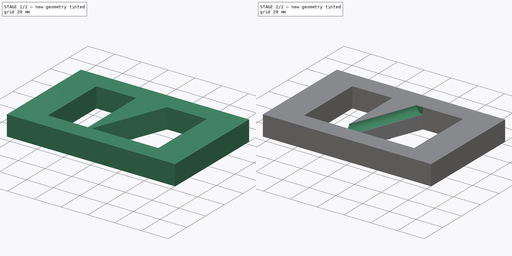
[diagram: build sequence overview — one tinted view per stage of 2, left to right]
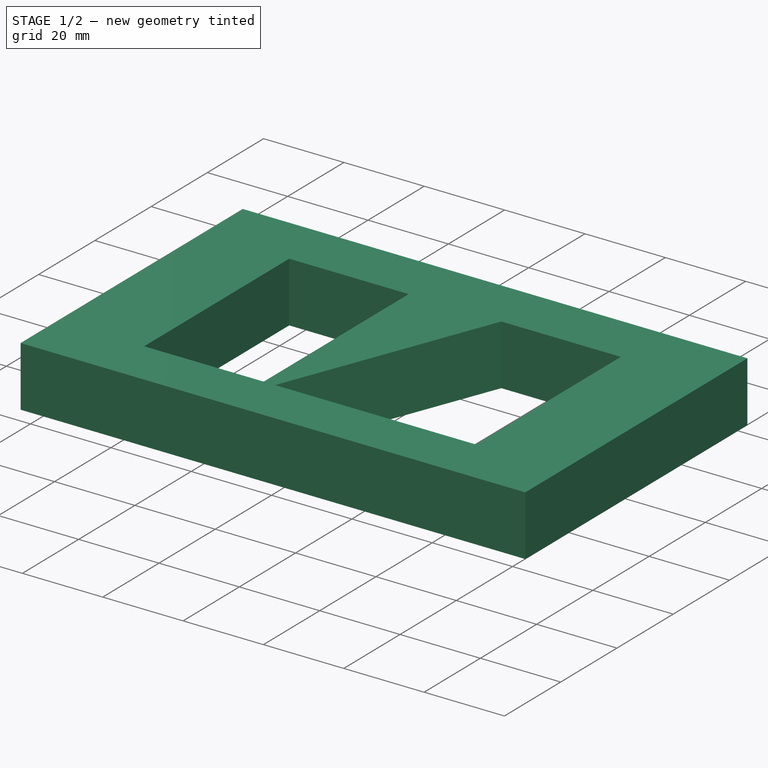
[diagram: stage 1 of 2 — iso view after this stage's code; geometry added in this stage tinted green]
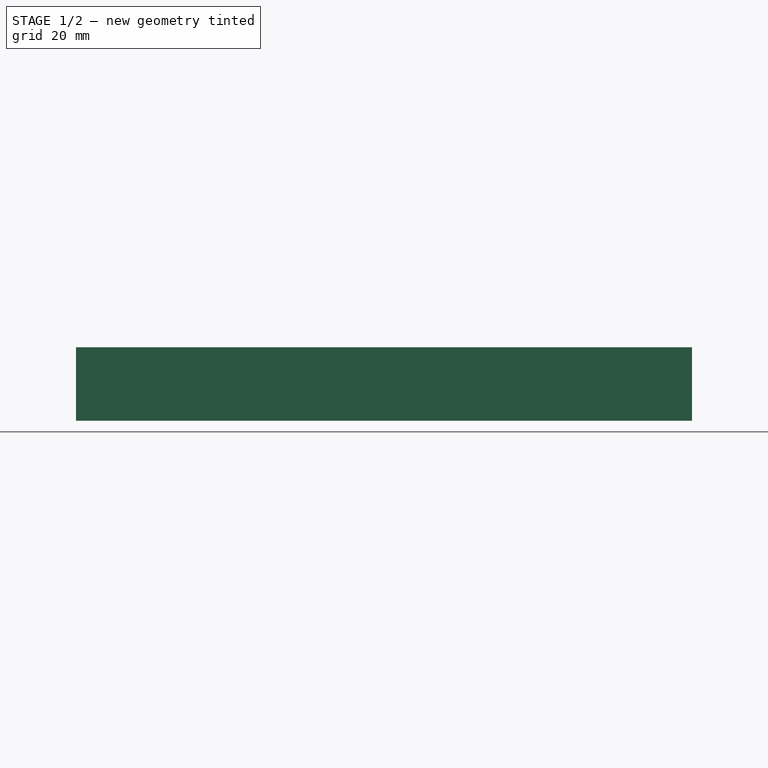
[diagram: stage 1 of 2 — front view after this stage's code; geometry added in this stage tinted green]
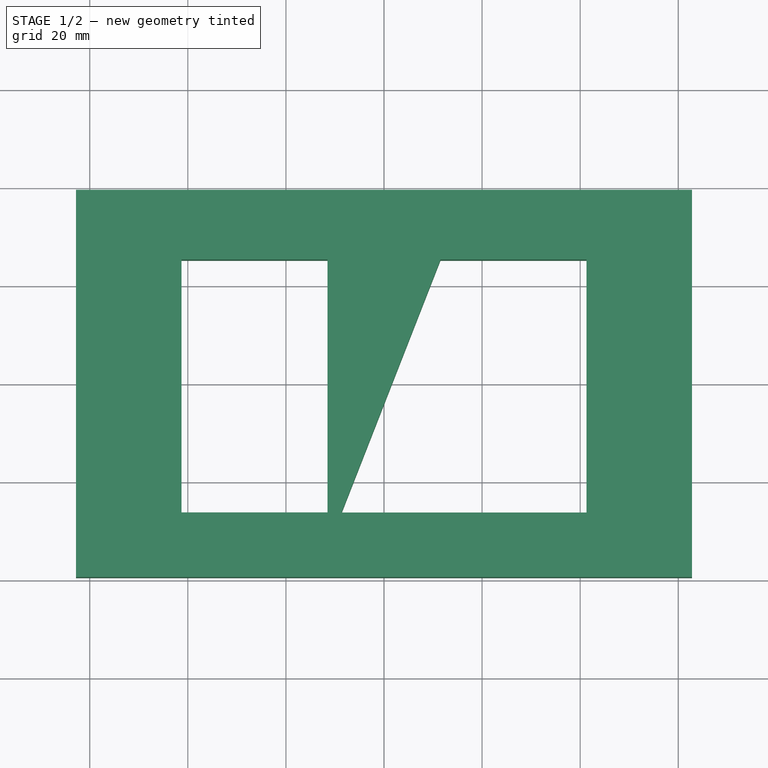
[diagram: stage 1 of 2 — top view after this stage's code; geometry added in this stage tinted green]
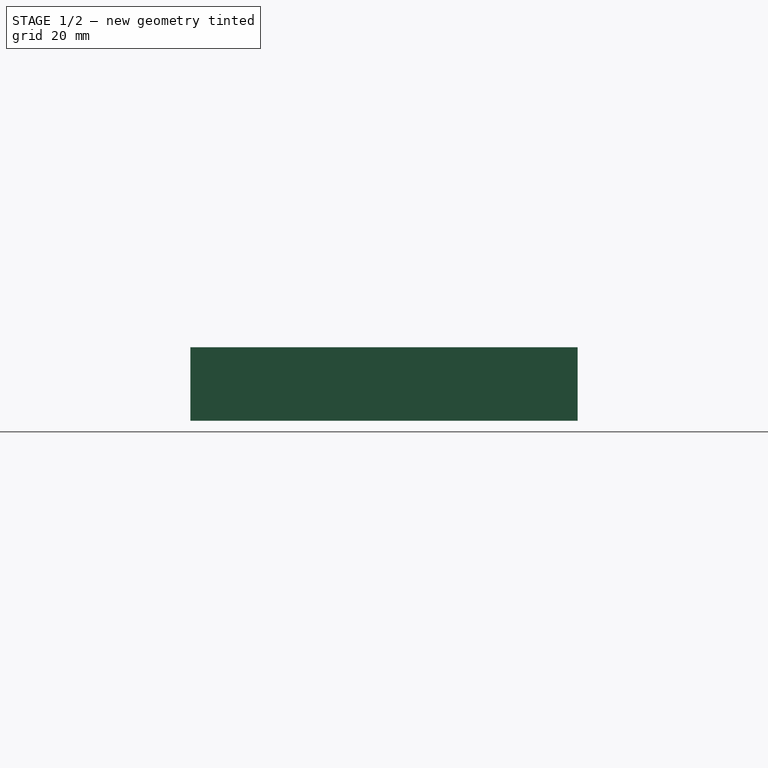
[diagram: stage 1 of 2 — right view after this stage's code; geometry added in this stage tinted green]
FCSTD DOCUMENT  (FreeCAD 0.20R29177 +426 (Git))
Label: project_12
License: All rights reserved
LicenseURL: https://en.wikipedia.org/wiki/All_rights_reserved
objects: Sketcher::SketchObject×2, PartDesign::Pad×1, PartDesign::Pocket×1, PartDesign::Body×1
note: 7 computed .brp shape members not serialized (recipe doc carries the construction recipe); baked Part::Feature solids carry a one-line shape summary decoded from their .brp

FEATURE [Sketcher::SketchObject] Sketch
  FullyConstrained = false
  MapMode = 5
  Support = -> [XY_Plane]
  sketch-geometry (12):
    g0: LineSegment StartX=-62.8142 StartY=39.4873 StartZ=0 EndX=62.8142 EndY=39.4873 EndZ=0
    g1: LineSegment StartX=62.8142 StartY=39.4873 StartZ=0 EndX=62.8142 EndY=-39.4873 EndZ=0
    g2: LineSegment StartX=62.8142 StartY=-39.4873 StartZ=0 EndX=-62.8142 EndY=-39.4873 EndZ=0
    g3: LineSegment StartX=-62.8142 StartY=-39.4873 StartZ=0 EndX=-62.8142 EndY=39.4873 EndZ=0
    g4: LineSegment StartX=-41.2808 StartY=25.2478 StartZ=0 EndX=-11.5219 EndY=25.2478 EndZ=0
    g5: LineSegment StartX=-11.5219 StartY=25.2478 StartZ=0 EndX=-11.5219 EndY=-26.3113 EndZ=0
    g6: LineSegment StartX=-11.5219 StartY=-26.3113 StartZ=0 EndX=-41.2808 EndY=-26.3113 EndZ=0
    g7: LineSegment StartX=-41.2808 StartY=-26.3113 StartZ=0 EndX=-41.2808 EndY=25.2478 EndZ=0
    g8: LineSegment StartX=41.2808 StartY=25.2478 StartZ=0 EndX=11.5219 EndY=25.2478 EndZ=0
    g9: LineSegment StartX=11.5219 StartY=25.2478 StartZ=0 EndX=-8.66174 EndY=-26.338 EndZ=0
    g10: LineSegment StartX=-8.66174 StartY=-26.338 StartZ=0 EndX=41.2808 EndY=-26.338 EndZ=0
    g11: LineSegment StartX=41.2808 StartY=-26.338 StartZ=0 EndX=41.2808 EndY=25.2478 EndZ=0
  constraints (23):
    c: Coincident(g0,g1)
    c: Coincident(g1,g2)
    c: Coincident(g2,g3)
    c: Coincident(g3,g0)
    c: Horizontal(g2)
    c: Vertical(g3)
    c: Symmetric(g0,g0,g-2)
    c: Symmetric(g1,g0,g-1)
    c: Coincident(g4,g5)
    c: Coincident(g5,g6)
    c: Coincident(g6,g7)
    c: Coincident(g7,g4)
    c: Horizontal(g4)
    c: Horizontal(g6)
    c: Vertical(g5)
    c: Vertical(g7)
    c: Coincident(g8,g9)
    c: Coincident(g9,g10)
    c: Coincident(g10,g11)
    c: Coincident(g11,g8)
    c: Horizontal(g8)
    c: Horizontal(g10)
    c: Vertical(g11)
FEATURE [PartDesign::Pad] Pad
  Direction = (0,0,1)
  Length = 15
  Length2 = 10
  Profile = -> Sketch
  ReferenceAxis = -> Sketch [N_Axis]
  Refine = true
  Type = 0
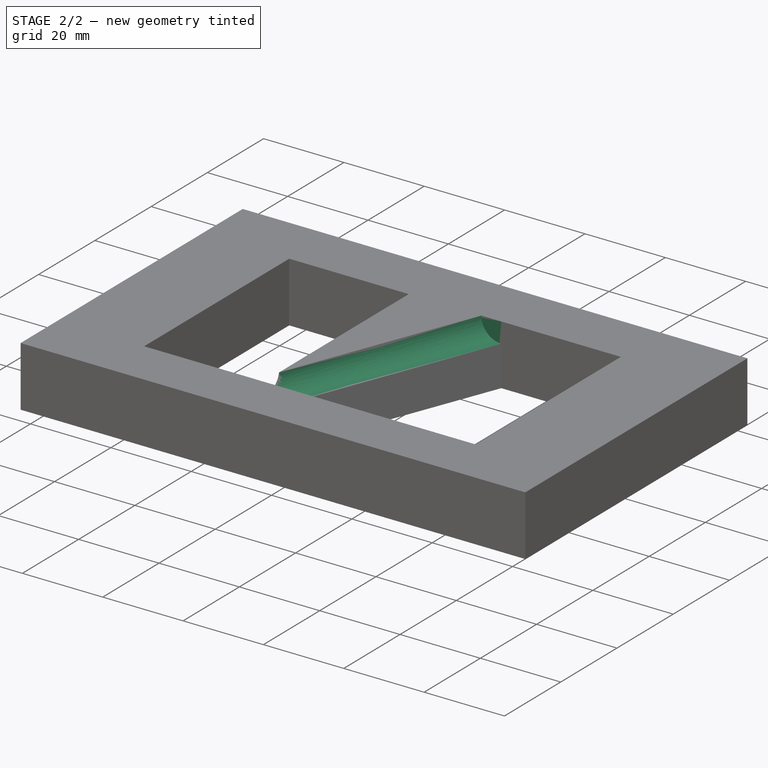
[diagram: stage 2 of 2 — iso view after this stage's code; geometry added in this stage tinted green]
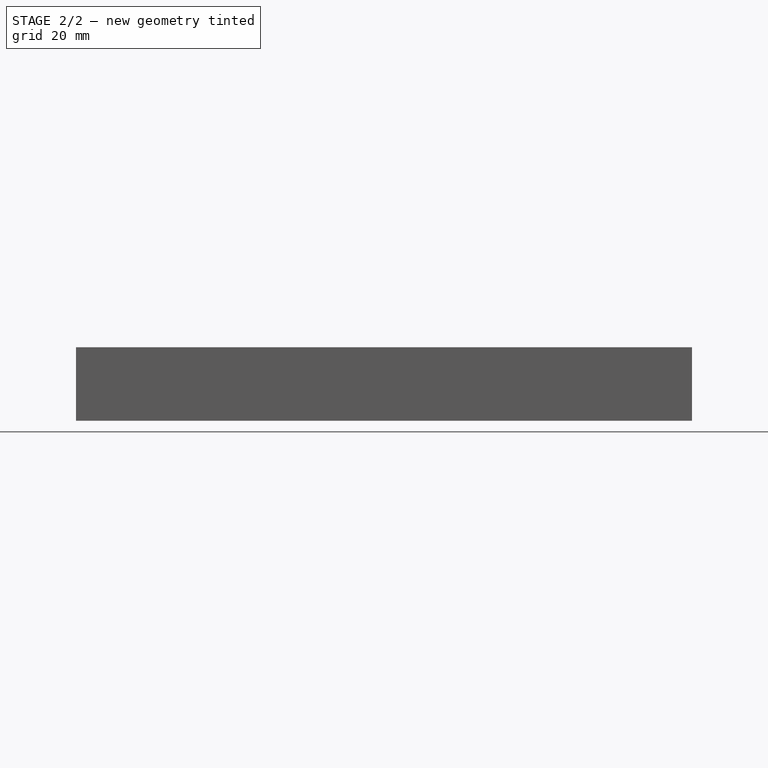
[diagram: stage 2 of 2 — front view after this stage's code; geometry added in this stage tinted green]
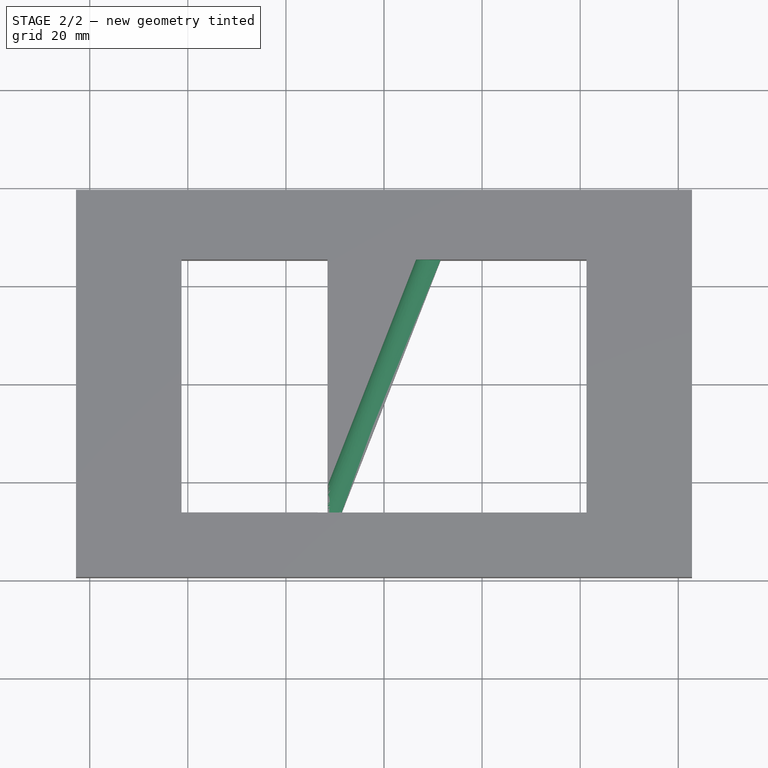
[diagram: stage 2 of 2 — top view after this stage's code; geometry added in this stage tinted green]
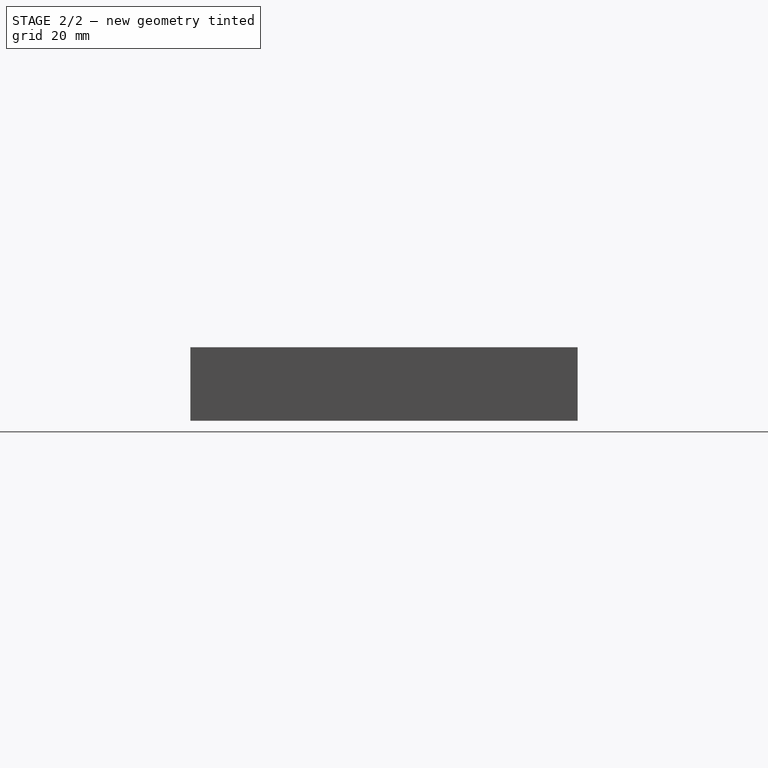
[diagram: stage 2 of 2 — right view after this stage's code; geometry added in this stage tinted green]
FEATURE [Sketcher::SketchObject] Sketch001
  ExternalGeometry = -> [Pad]
  FullyConstrained = false
  MapMode = 5
  Placement = pos=(0,-26.338,0) rot=(0,0.707107,0.707107;3.14159rad)
  Support = -> [Pad]
  sketch-geometry (1):
    g0: Circle CenterX=8.66174 CenterY=15 CenterZ=0 NormalX=0 NormalY=0 NormalZ=1 AngleXU=0 Radius=4.98188
  constraints (1):
    c: Coincident(g0,g-3)
FEATURE [PartDesign::Pocket] Pocket
  BaseFeature = -> Pad
  Direction = (0.364366,0.931256,0)
  Length = 46
  Length2 = 5
  Profile = -> Sketch001
  ReferenceAxis = -> Pad [Edge19]
  Refine = true
  Type = 2
FEATURE [PartDesign::Body] Body
  Group = -> [Sketch,Pad,Sketch001,Pocket]
  Origin = -> Origin
  Tip = -> Pocket
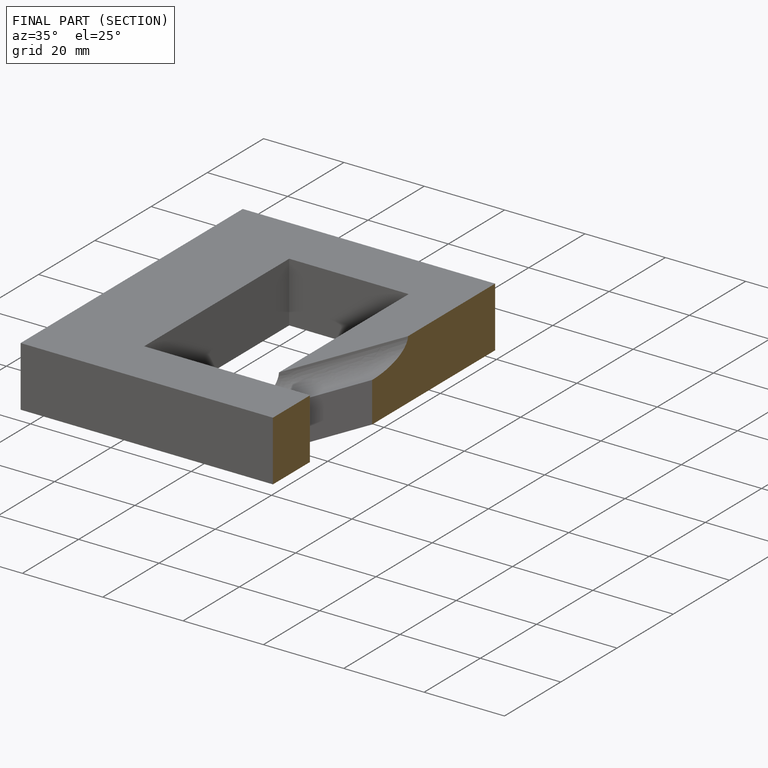
[diagram: finished part — half-section view (interior)]
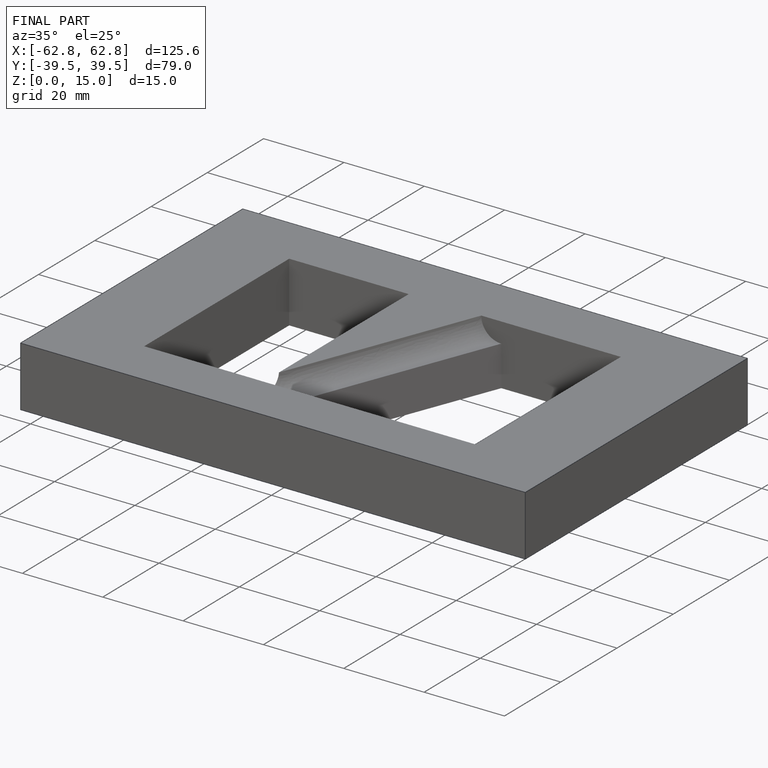
[diagram: finished part — iso view with bounding-box wireframe]
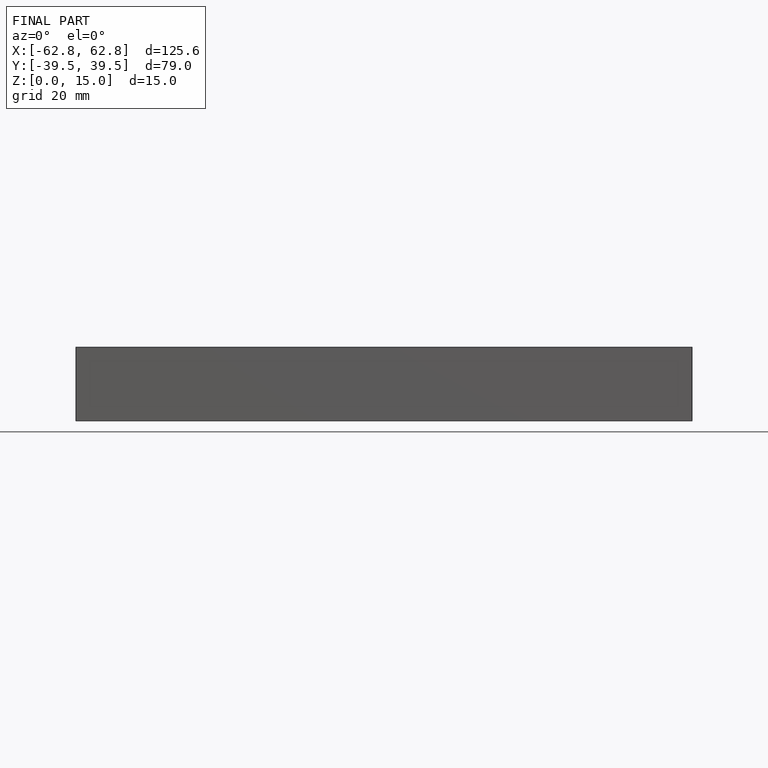
[diagram: finished part — front view with bounding-box wireframe]
